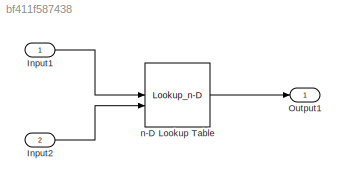
MODEL slx_bf411f587438
KIND model
CONFIG AbsTol = auto
CONFIG EnableMultiTasking = off
CONFIG FixedStep = 0.2
CONFIG MaxStep = auto
CONFIG MinStep = auto
CONFIG RelTol = 1e-3
CONFIG SampleTimeConstraint = Unconstrained
CONFIG SolverName = FixedStepDiscrete
CONFIG StartTime = 0.0
CONFIG StopTime = 10.0
WORKSPACE source: mxarray member
WORKSPACE LUT_arg: Simulink.LookupTable (value not decoded)
BLOCK [Inport] Input1
BLOCK [Inport] Input2
  Port = 2
BLOCK [Outport] Output1
  VectorParamsAs1DForOutWhenUnconnected = off
BLOCK [Lookup_n-D] n-D Lookup Table
  BreakpointsForDimension1 = [1 2]
  BreakpointsForDimension2 = [3 4]
  BreakpointsForDimension3 = [5, 7]
  DataSpecification = Lookup table object
  InputPortMap = u0,u1
  InternalRulePriority = Speed
  LookupTableObject = LUT_arg
  RndMeth = Simplest
  Table = [4 3; 1 2]
LINE Input1:1 -> n-D Lookup Table:1
LINE Input2:1 -> n-D Lookup Table:2
LINE n-D Lookup Table:1 -> Output1:1
